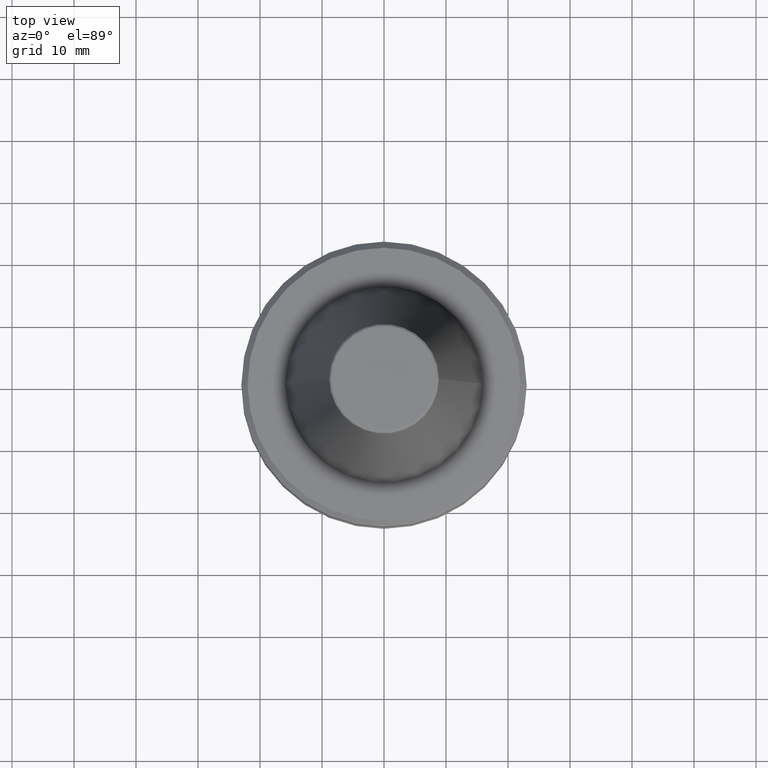
[diagram: clean part render]
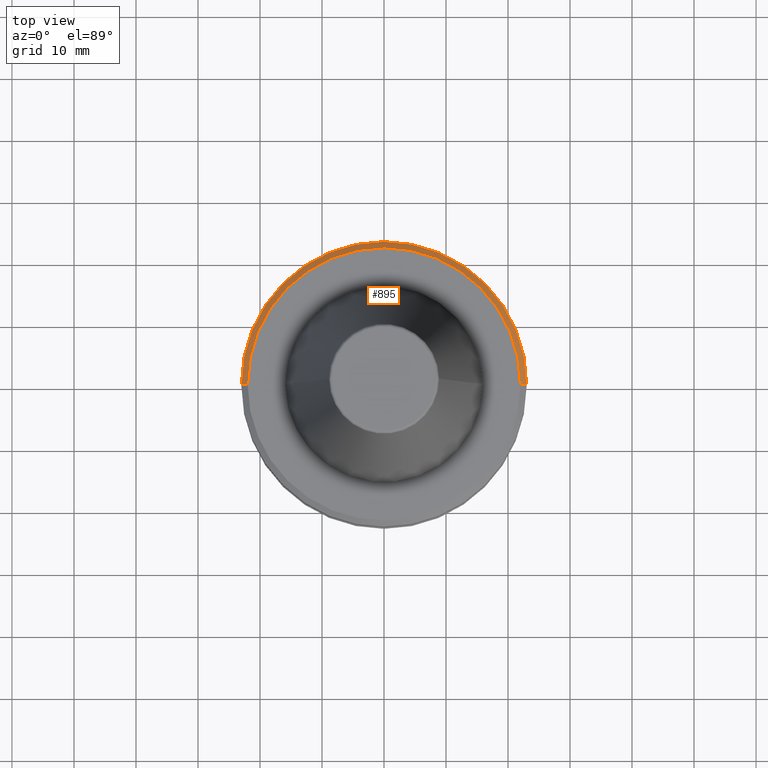
[diagram: same view with one face highlighted and labeled with its STEP entity id]
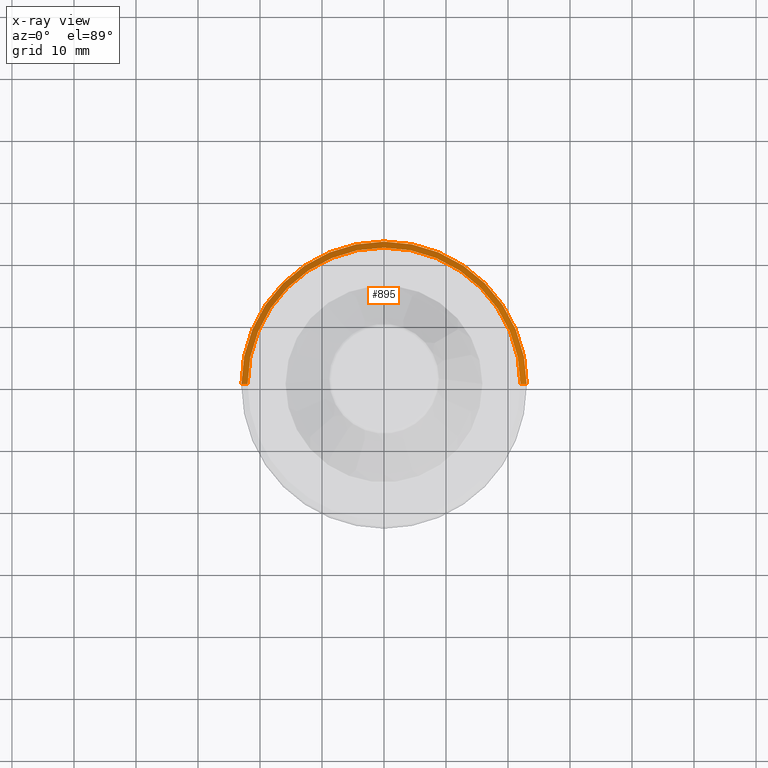
[diagram: x-ray of the same camera — body ghosted, the highlighted face saturated]
A machine part, top view. The second image highlights one B-rep face of the part: STEP entity #895.
The next image is the same camera in x-ray: the body ghosted, the highlighted face saturated — about 0% of this face is hidden behind the body in this view.
In plain terms, the highlighted conical surface has half-angle 45 deg.
Its self-contained STEP definition (entity closure, byte-faithful):
#6 = LINE ( 'NONE', #127, #636 ) ;
#15 = AXIS2_PLACEMENT_3D ( 'NONE', #538, #239, #308 ) ;
#73 = VERTEX_POINT ( 'NONE', #218 ) ;
#76 = EDGE_CURVE ( 'NONE', #383, #367, #178, .T. ) ;
#100 = DIRECTION ( 'NONE',  ( 0.7071067811865081600, 8.659560562354452100E-017, -0.7071067811865867600 ) ) ;
#127 = CARTESIAN_POINT ( 'NONE',  ( 21.99999999999990800, 2.694222958124165800E-015, -2.000000000000001800 ) ) ;
#144 = ORIENTED_EDGE ( 'NONE', *, *, #703, .T. ) ;
#175 = LINE ( 'NONE', #761, #345 ) ;
#178 = CIRCLE ( 'NONE', #440, 21.99999999999990800 ) ;
#185 = CARTESIAN_POINT ( 'NONE',  ( 21.99999999999990800, 2.755455298081533300E-015, -2.000000000000001800 ) ) ;
#186 = AXIS2_PLACEMENT_3D ( 'NONE', #756, #520, #840 ) ;
#218 = CARTESIAN_POINT ( 'NONE',  ( 22.99999999999990800, 0.0000000000000000000, -3.000000000000113700 ) ) ;
#239 = DIRECTION ( 'NONE',  ( 0.0000000000000000000, 0.0000000000000000000, -1.000000000000000000 ) ) ;
#277 = FACE_OUTER_BOUND ( 'NONE', #959, .T. ) ;
#308 = DIRECTION ( 'NONE',  ( -1.000000000000000000, 0.0000000000000000000, 0.0000000000000000000 ) ) ;
#312 = CARTESIAN_POINT ( 'NONE',  ( -21.99999999999990800, 0.0000000000000000000, -2.000000000000001800 ) ) ;
#345 = VECTOR ( 'NONE', #431, 1000.000000000000000 ) ;
#367 = VERTEX_POINT ( 'NONE', #312 ) ;
#383 = VERTEX_POINT ( 'NONE', #185 ) ;
#425 = EDGE_CURVE ( 'NONE', #383, #73, #6, .T. ) ;
#431 = DIRECTION ( 'NONE',  ( -0.7071067811865081600, 0.0000000000000000000, -0.7071067811865867600 ) ) ;
#438 = DIRECTION ( 'NONE',  ( -0.0000000000000000000, -0.0000000000000000000, 1.000000000000000000 ) ) ;
#440 = AXIS2_PLACEMENT_3D ( 'NONE', #989, #438, #908 ) ;
#520 = DIRECTION ( 'NONE',  ( -0.0000000000000000000, -0.0000000000000000000, 1.000000000000000000 ) ) ;
#538 = CARTESIAN_POINT ( 'NONE',  ( 0.0000000000000000000, 0.0000000000000000000, -2.000000000000001800 ) ) ;
#621 = CARTESIAN_POINT ( 'NONE',  ( -22.99999999999990800, 2.816687638038901300E-015, -3.000000000000113700 ) ) ;
#636 = VECTOR ( 'NONE', #100, 1000.000000000000000 ) ;
#653 = CIRCLE ( 'NONE', #186, 22.99999999999990800 ) ;
#662 = CONICAL_SURFACE ( 'NONE', #15, 21.99999999999990800, 0.7853981633973927700 ) ;
#677 = ORIENTED_EDGE ( 'NONE', *, *, #76, .F. ) ;
#703 = EDGE_CURVE ( 'NONE', #73, #914, #653, .T. ) ;
#756 = CARTESIAN_POINT ( 'NONE',  ( 0.0000000000000000000, 0.0000000000000000000, -3.000000000000113700 ) ) ;
#761 = CARTESIAN_POINT ( 'NONE',  ( -21.99999999999990800, 0.0000000000000000000, -2.000000000000001800 ) ) ;
#816 = ORIENTED_EDGE ( 'NONE', *, *, #837, .F. ) ;
#832 = ORIENTED_EDGE ( 'NONE', *, *, #425, .T. ) ;
#837 = EDGE_CURVE ( 'NONE', #367, #914, #175, .T. ) ;
#840 = DIRECTION ( 'NONE',  ( 1.000000000000000000, 0.0000000000000000000, 0.0000000000000000000 ) ) ;
#895 = ADVANCED_FACE ( 'NONE', ( #277 ), #662, .T. ) ;
#908 = DIRECTION ( 'NONE',  ( 1.000000000000000000, 0.0000000000000000000, 0.0000000000000000000 ) ) ;
#914 = VERTEX_POINT ( 'NONE', #621 ) ;
#959 = EDGE_LOOP ( 'NONE', ( #677, #832, #144, #816 ) ) ;
#989 = CARTESIAN_POINT ( 'NONE',  ( 0.0000000000000000000, 0.0000000000000000000, -2.000000000000001800 ) ) ;